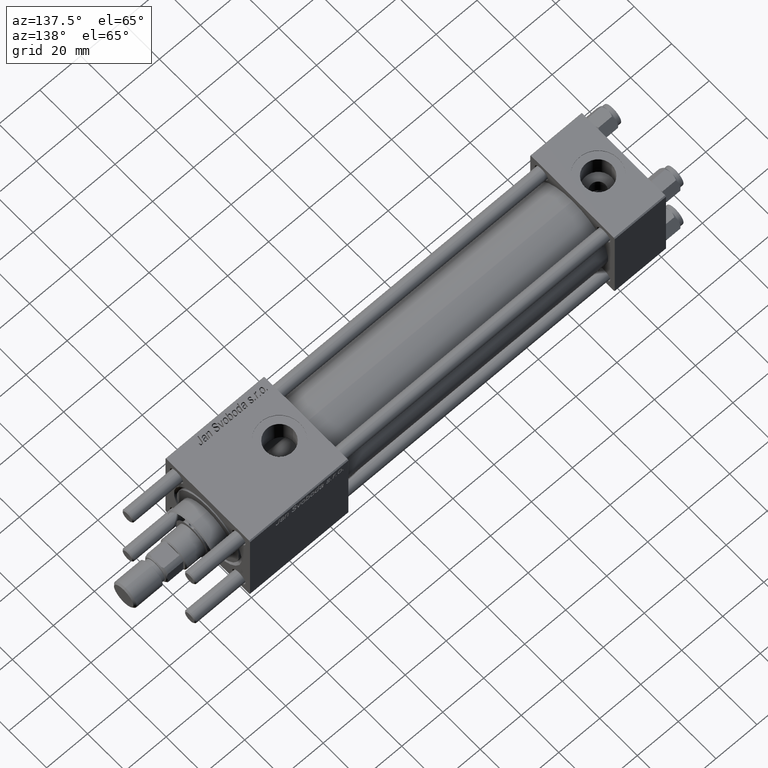
[diagram: clean part render]
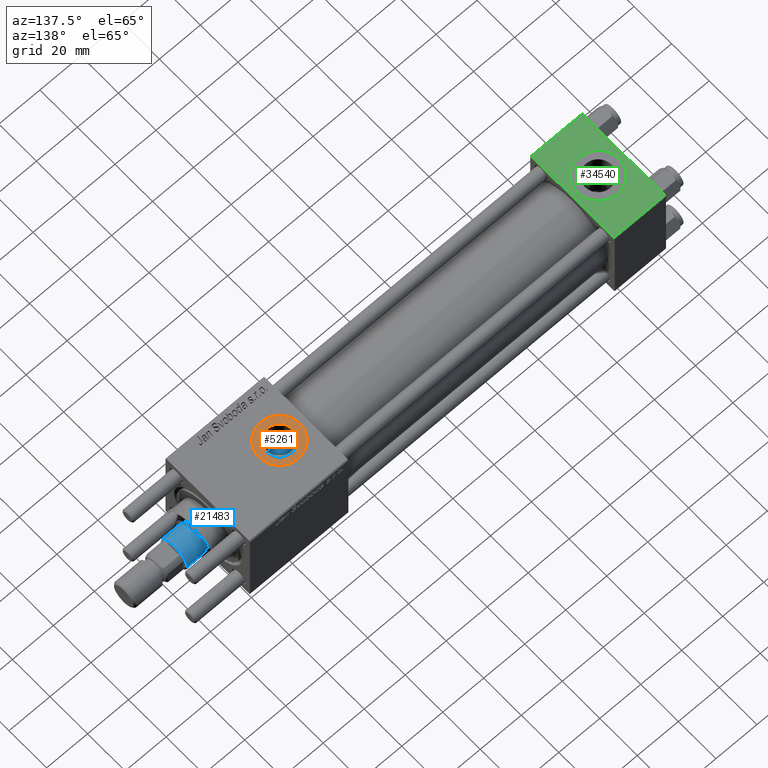
[diagram: same view with three faces highlighted in distinct colors, each labeled with its STEP entity id]
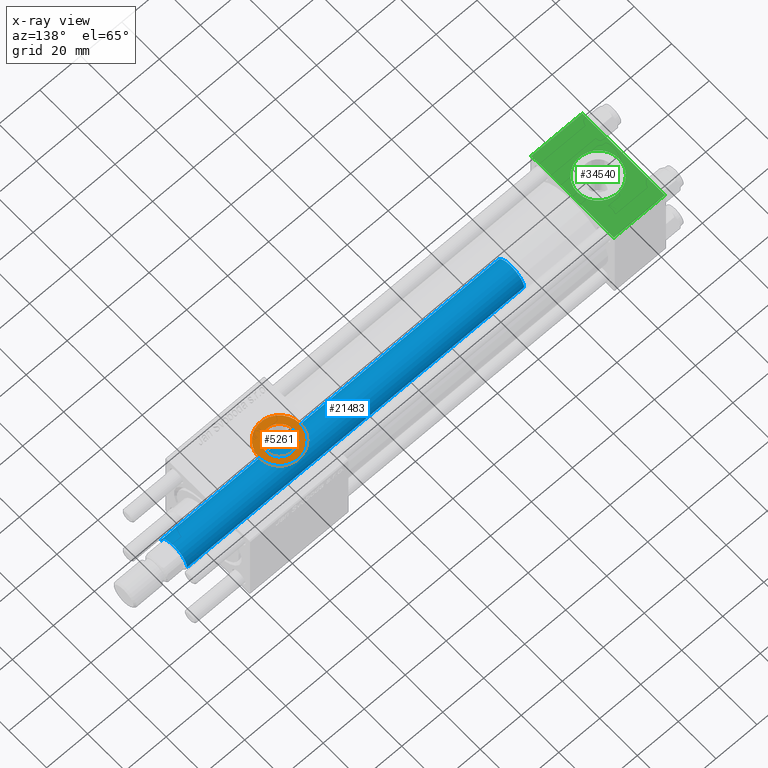
[diagram: x-ray of the same camera — body ghosted, the three highlighted faces saturated]
A machine part, auxiliary view with three faces highlighted in distinct colors.
The next image is the same camera in x-ray (body ghosted, the three faces saturated) — at least one of them is partly hidden behind the body in this view.
Their STEP definitions:

[orange] entity #5261 — the highlighted planar face has unit normal (0, 0, 1).
#1479 = CIRCLE ( 'NONE', #21516, 6.580000000000002736 ) ;
#2242 = CARTESIAN_POINT ( 'NONE',  ( 178.0000000000000568, -5.204170427930420494E-15, 22.29999999999999716 ) ) ;
#2598 = PLANE ( 'NONE',  #42755 ) ;
#5261 = ADVANCED_FACE ( 'NONE', ( #20523, #11567 ), #2598, .T. ) ;
#6026 = DIRECTION ( 'NONE',  ( 1.000000000000000000, 0.000000000000000000, 0.000000000000000000 ) ) ;
#10577 = EDGE_LOOP ( 'NONE', ( #54606, #48930 ) ) ;
#11086 = CARTESIAN_POINT ( 'NONE',  ( 168.0000000000000284, -5.204170427930420494E-15, 22.29999999999999716 ) ) ;
#11347 = CIRCLE ( 'NONE', #37008, 6.580000000000002736 ) ;
#11567 = FACE_OUTER_BOUND ( 'NONE', #12100, .T. ) ;
#12100 = EDGE_LOOP ( 'NONE', ( #57762, #48279 ) ) ;
#12611 = AXIS2_PLACEMENT_3D ( 'NONE', #55429, #38056, #27904 ) ;
#13378 = CARTESIAN_POINT ( 'NONE',  ( 174.5800000000000409, -4.398352834091458297E-15, 22.29999999999999716 ) ) ;
#13440 = VERTEX_POINT ( 'NONE', #13378 ) ;
#14977 = DIRECTION ( 'NONE',  ( -0.000000000000000000, -0.000000000000000000, -1.000000000000000000 ) ) ;
#17044 = DIRECTION ( 'NONE',  ( 1.000000000000000000, 0.000000000000000000, 0.000000000000000000 ) ) ;
#17116 = EDGE_CURVE ( 'NONE', #34854, #41123, #45074, .T. ) ;
#20523 = FACE_BOUND ( 'NONE', #10577, .T. ) ;
#20814 = CARTESIAN_POINT ( 'NONE',  ( 168.0000000000000284, -5.204170427930420494E-15, 22.29999999999999716 ) ) ;
#21516 = AXIS2_PLACEMENT_3D ( 'NONE', #11086, #14977, #6026 ) ;
#26027 = DIRECTION ( 'NONE',  ( -0.000000000000000000, -0.000000000000000000, -1.000000000000000000 ) ) ;
#27904 = DIRECTION ( 'NONE',  ( 1.000000000000000000, 0.000000000000000000, 0.000000000000000000 ) ) ;
#28040 = DIRECTION ( 'NONE',  ( 0.000000000000000000, 0.000000000000000000, 1.000000000000000000 ) ) ;
#28308 = EDGE_CURVE ( 'NONE', #13440, #35811, #11347, .T. ) ;
#30523 = CARTESIAN_POINT ( 'NONE',  ( 168.0000000000000284, -5.204170427930420494E-15, 22.29999999999999716 ) ) ;
#32545 = DIRECTION ( 'NONE',  ( 1.000000000000000000, 0.000000000000000000, 0.000000000000000000 ) ) ;
#32649 = AXIS2_PLACEMENT_3D ( 'NONE', #36727, #28040, #32545 ) ;
#34854 = VERTEX_POINT ( 'NONE', #50965 ) ;
#35811 = VERTEX_POINT ( 'NONE', #47647 ) ;
#36727 = CARTESIAN_POINT ( 'NONE',  ( 168.0000000000000284, -5.204170427930420494E-15, 22.29999999999999716 ) ) ;
#37008 = AXIS2_PLACEMENT_3D ( 'NONE', #30523, #26027, #17044 ) ;
#38056 = DIRECTION ( 'NONE',  ( 0.000000000000000000, 0.000000000000000000, 1.000000000000000000 ) ) ;
#39066 = DIRECTION ( 'NONE',  ( 0.000000000000000000, 0.000000000000000000, 1.000000000000000000 ) ) ;
#41123 = VERTEX_POINT ( 'NONE', #2242 ) ;
#42165 = CIRCLE ( 'NONE', #32649, 10.00000000000000888 ) ;
#42755 = AXIS2_PLACEMENT_3D ( 'NONE', #20814, #39066, #52832 ) ;
#44259 = EDGE_CURVE ( 'NONE', #41123, #34854, #42165, .T. ) ;
#45074 = CIRCLE ( 'NONE', #12611, 10.00000000000000888 ) ;
#47647 = CARTESIAN_POINT ( 'NONE',  ( 161.4200000000000443, -5.204170427930420494E-15, 22.29999999999999716 ) ) ;
#48279 = ORIENTED_EDGE ( 'NONE', *, *, #17116, .T. ) ;
#48930 = ORIENTED_EDGE ( 'NONE', *, *, #28308, .T. ) ;
#50965 = CARTESIAN_POINT ( 'NONE',  ( 158.0000000000000284, -3.979523628783065857E-15, 22.29999999999999716 ) ) ;
#52832 = DIRECTION ( 'NONE',  ( 1.000000000000000000, 0.000000000000000000, -0.000000000000000000 ) ) ;
#54606 = ORIENTED_EDGE ( 'NONE', *, *, #54666, .T. ) ;
#54666 = EDGE_CURVE ( 'NONE', #35811, #13440, #1479, .T. ) ;
#55429 = CARTESIAN_POINT ( 'NONE',  ( 168.0000000000000284, -5.204170427930420494E-15, 22.29999999999999716 ) ) ;
#57762 = ORIENTED_EDGE ( 'NONE', *, *, #44259, .T. ) ;

[blue] entity #21483 — the highlighted cylindrical surface (edge-blend (fillet) strip) has radius 7 mm, axis along (-1, 0, 0).
#1411 = CARTESIAN_POINT ( 'NONE',  ( -7.000000000000000000, 0.000000000000000000, 30.00000000000000000 ) ) ;
#4024 = CYLINDRICAL_SURFACE ( 'NONE', #6889, 7.000000000000000000 ) ;
#4032 = VECTOR ( 'NONE', #48287, 1000.000000000000000 ) ;
#4231 = VERTEX_POINT ( 'NONE', #1411 ) ;
#6889 = AXIS2_PLACEMENT_3D ( 'NONE', #40776, #50355, #36613 ) ;
#9818 = ORIENTED_EDGE ( 'NONE', *, *, #16916, .F. ) ;
#9837 = EDGE_CURVE ( 'NONE', #4231, #16038, #43833, .T. ) ;
#10181 = EDGE_CURVE ( 'NONE', #16281, #10760, #28608, .T. ) ;
#10618 = DIRECTION ( 'NONE',  ( -0.000000000000000000, -0.000000000000000000, -1.000000000000000000 ) ) ;
#10760 = VERTEX_POINT ( 'NONE', #58723 ) ;
#14916 = CARTESIAN_POINT ( 'NONE',  ( 7.000000000000000000, 8.572527594031473190E-16, 194.5000000000000284 ) ) ;
#14995 = DIRECTION ( 'NONE',  ( 0.000000000000000000, 0.000000000000000000, 1.000000000000000000 ) ) ;
#15139 = ORIENTED_EDGE ( 'NONE', *, *, #9837, .T. ) ;
#15442 = CARTESIAN_POINT ( 'NONE',  ( 0.000000000000000000, 0.000000000000000000, 194.5000000000000284 ) ) ;
#16031 = DIRECTION ( 'NONE',  ( 1.000000000000000000, 0.000000000000000000, 0.000000000000000000 ) ) ;
#16038 = VERTEX_POINT ( 'NONE', #30230 ) ;
#16281 = VERTEX_POINT ( 'NONE', #14916 ) ;
#16583 = LINE ( 'NONE', #30058, #4032 ) ;
#16916 = EDGE_CURVE ( 'NONE', #16281, #16038, #16583, .T. ) ;
#17770 = VECTOR ( 'NONE', #10618, 1000.000000000000000 ) ;
#18070 = AXIS2_PLACEMENT_3D ( 'NONE', #57403, #14995, #52596 ) ;
#21483 = ADVANCED_FACE ( 'NONE', ( #40200 ), #4024, .T. ) ;
#24058 = CARTESIAN_POINT ( 'NONE',  ( -7.000000000000000000, 0.000000000000000000, 195.0000000000000000 ) ) ;
#24364 = ORIENTED_EDGE ( 'NONE', *, *, #57247, .T. ) ;
#25941 = ORIENTED_EDGE ( 'NONE', *, *, #10181, .T. ) ;
#28608 = CIRCLE ( 'NONE', #59203, 7.000000000000000000 ) ;
#30058 = CARTESIAN_POINT ( 'NONE',  ( 7.000000000000000000, 8.572527594031473190E-16, 195.0000000000000000 ) ) ;
#30230 = CARTESIAN_POINT ( 'NONE',  ( 7.000000000000000000, 8.572527594031473190E-16, 30.00000000000000000 ) ) ;
#36613 = DIRECTION ( 'NONE',  ( -1.000000000000000000, 0.000000000000000000, 0.000000000000000000 ) ) ;
#37923 = EDGE_LOOP ( 'NONE', ( #9818, #25941, #24364, #15139 ) ) ;
#40200 = FACE_OUTER_BOUND ( 'NONE', #37923, .T. ) ;
#40776 = CARTESIAN_POINT ( 'NONE',  ( 0.000000000000000000, 0.000000000000000000, 195.0000000000000000 ) ) ;
#41699 = LINE ( 'NONE', #24058, #17770 ) ;
#43833 = CIRCLE ( 'NONE', #18070, 7.000000000000000000 ) ;
#47143 = DIRECTION ( 'NONE',  ( 0.000000000000000000, 0.000000000000000000, -1.000000000000000000 ) ) ;
#48287 = DIRECTION ( 'NONE',  ( -0.000000000000000000, -0.000000000000000000, -1.000000000000000000 ) ) ;
#50355 = DIRECTION ( 'NONE',  ( -0.000000000000000000, -0.000000000000000000, -1.000000000000000000 ) ) ;
#52596 = DIRECTION ( 'NONE',  ( 1.000000000000000000, 0.000000000000000000, 0.000000000000000000 ) ) ;
#57247 = EDGE_CURVE ( 'NONE', #10760, #4231, #41699, .T. ) ;
#57403 = CARTESIAN_POINT ( 'NONE',  ( 0.000000000000000000, 0.000000000000000000, 30.00000000000000000 ) ) ;
#58723 = CARTESIAN_POINT ( 'NONE',  ( -7.000000000000000000, 0.000000000000000000, 194.5000000000000284 ) ) ;
#59203 = AXIS2_PLACEMENT_3D ( 'NONE', #15442, #47143, #16031 ) ;

[green] entity #34540 — the highlighted planar face has unit normal (0, 0, -1).
#774 = ORIENTED_EDGE ( 'NONE', *, *, #44445, .T. ) ;
#2387 = CARTESIAN_POINT ( 'NONE',  ( 12.50000000000000000, -1.734723475976807094E-15, 22.50000000000000000 ) ) ;
#2668 = VERTEX_POINT ( 'NONE', #18636 ) ;
#3671 = CARTESIAN_POINT ( 'NONE',  ( 12.50000000000000000, -1.734723475976807094E-15, 22.50000000000000000 ) ) ;
#5771 = CARTESIAN_POINT ( 'NONE',  ( 25.00000000000000000, -21.99999999999999289, 22.50000000000000000 ) ) ;
#6902 = DIRECTION ( 'NONE',  ( 0.000000000000000000, -1.000000000000000000, -7.709882115452476934E-17 ) ) ;
#7787 = DIRECTION ( 'NONE',  ( -1.000000000000000000, 0.000000000000000000, 0.000000000000000000 ) ) ;
#8034 = EDGE_CURVE ( 'NONE', #33670, #53560, #20880, .T. ) ;
#9711 = EDGE_CURVE ( 'NONE', #56774, #33086, #32073, .T. ) ;
#12775 = EDGE_LOOP ( 'NONE', ( #39591, #774, #52563, #22809 ) ) ;
#12793 = PLANE ( 'NONE',  #17139 ) ;
#13080 = FACE_OUTER_BOUND ( 'NONE', #12775, .T. ) ;
#13833 = CARTESIAN_POINT ( 'NONE',  ( 25.00000000000000000, 22.50000000000000000, 22.50000000000000355 ) ) ;
#13854 = DIRECTION ( 'NONE',  ( 1.000000000000000000, 0.000000000000000000, 0.000000000000000000 ) ) ;
#16264 = CARTESIAN_POINT ( 'NONE',  ( 22.50000000000000000, -1.734723475976807094E-15, 22.50000000000000000 ) ) ;
#17139 = AXIS2_PLACEMENT_3D ( 'NONE', #58847, #49257, #17257 ) ;
#17257 = DIRECTION ( 'NONE',  ( 0.000000000000000000, 1.000000000000000000, 7.709882115452476934E-17 ) ) ;
#18636 = CARTESIAN_POINT ( 'NONE',  ( 0.000000000000000000, 21.99999999999999289, 22.50000000000000355 ) ) ;
#20296 = CARTESIAN_POINT ( 'NONE',  ( 25.00000000000000000, -21.99999999999997868, 22.50000000000000000 ) ) ;
#20880 = CIRCLE ( 'NONE', #25673, 9.999999999999998224 ) ;
#21193 = CARTESIAN_POINT ( 'NONE',  ( 25.00000000000000000, 21.99999999999999289, 22.50000000000000355 ) ) ;
#21900 = DIRECTION ( 'NONE',  ( 0.000000000000000000, 0.000000000000000000, 1.000000000000000000 ) ) ;
#22809 = ORIENTED_EDGE ( 'NONE', *, *, #50801, .T. ) ;
#25673 = AXIS2_PLACEMENT_3D ( 'NONE', #3671, #21900, #50302 ) ;
#26357 = EDGE_LOOP ( 'NONE', ( #46592, #29649 ) ) ;
#27108 = FACE_BOUND ( 'NONE', #26357, .T. ) ;
#27894 = LINE ( 'NONE', #5771, #51710 ) ;
#29649 = ORIENTED_EDGE ( 'NONE', *, *, #29953, .F. ) ;
#29953 = EDGE_CURVE ( 'NONE', #53560, #33670, #54301, .T. ) ;
#31484 = DIRECTION ( 'NONE',  ( 0.000000000000000000, -1.000000000000000000, -7.709882115452476934E-17 ) ) ;
#32073 = LINE ( 'NONE', #13833, #41956 ) ;
#32752 = CARTESIAN_POINT ( 'NONE',  ( 2.500000000000003997, -5.100766768294543310E-16, 22.50000000000000000 ) ) ;
#33086 = VERTEX_POINT ( 'NONE', #20296 ) ;
#33670 = VERTEX_POINT ( 'NONE', #16264 ) ;
#34540 = ADVANCED_FACE ( 'NONE', ( #27108, #13080 ), #12793, .F. ) ;
#38851 = DIRECTION ( 'NONE',  ( 0.000000000000000000, 0.000000000000000000, 1.000000000000000000 ) ) ;
#38875 = CARTESIAN_POINT ( 'NONE',  ( 0.000000000000000000, 22.50000000000000000, 22.50000000000000355 ) ) ;
#39428 = VECTOR ( 'NONE', #6902, 1000.000000000000000 ) ;
#39591 = ORIENTED_EDGE ( 'NONE', *, *, #47349, .T. ) ;
#40831 = CARTESIAN_POINT ( 'NONE',  ( 0.000000000000000000, -21.99999999999997868, 22.50000000000000000 ) ) ;
#41654 = VERTEX_POINT ( 'NONE', #40831 ) ;
#41956 = VECTOR ( 'NONE', #31484, 1000.000000000000000 ) ;
#42741 = LINE ( 'NONE', #38875, #39428 ) ;
#43317 = VECTOR ( 'NONE', #7787, 1000.000000000000000 ) ;
#44445 = EDGE_CURVE ( 'NONE', #41654, #33086, #27894, .T. ) ;
#44799 = DIRECTION ( 'NONE',  ( 1.000000000000000000, 0.000000000000000000, 0.000000000000000000 ) ) ;
#46592 = ORIENTED_EDGE ( 'NONE', *, *, #8034, .F. ) ;
#47349 = EDGE_CURVE ( 'NONE', #2668, #41654, #42741, .T. ) ;
#49257 = DIRECTION ( 'NONE',  ( 0.000000000000000000, 7.709882115452476934E-17, -1.000000000000000000 ) ) ;
#50302 = DIRECTION ( 'NONE',  ( 1.000000000000000000, 0.000000000000000000, 0.000000000000000000 ) ) ;
#50801 = EDGE_CURVE ( 'NONE', #56774, #2668, #59211, .T. ) ;
#51710 = VECTOR ( 'NONE', #13854, 1000.000000000000000 ) ;
#52563 = ORIENTED_EDGE ( 'NONE', *, *, #9711, .F. ) ;
#53560 = VERTEX_POINT ( 'NONE', #32752 ) ;
#54301 = CIRCLE ( 'NONE', #59051, 9.999999999999998224 ) ;
#56774 = VERTEX_POINT ( 'NONE', #21193 ) ;
#58030 = CARTESIAN_POINT ( 'NONE',  ( 0.000000000000000000, 21.99999999999999289, 22.50000000000000355 ) ) ;
#58847 = CARTESIAN_POINT ( 'NONE',  ( 25.00000000000000000, 22.50000000000000000, 22.50000000000000355 ) ) ;
#59051 = AXIS2_PLACEMENT_3D ( 'NONE', #2387, #38851, #44799 ) ;
#59211 = LINE ( 'NONE', #58030, #43317 ) ;